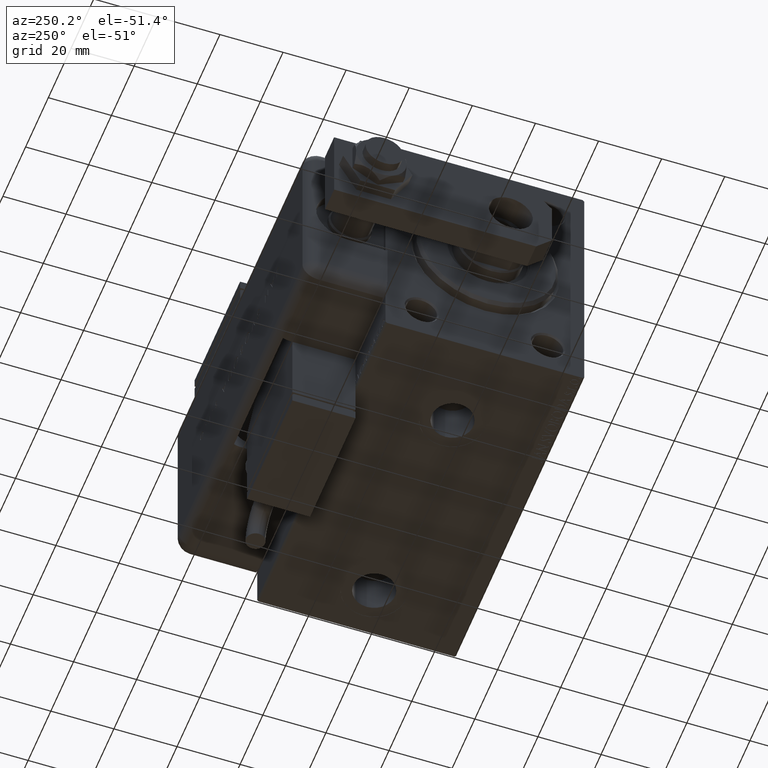
[diagram: clean part render]
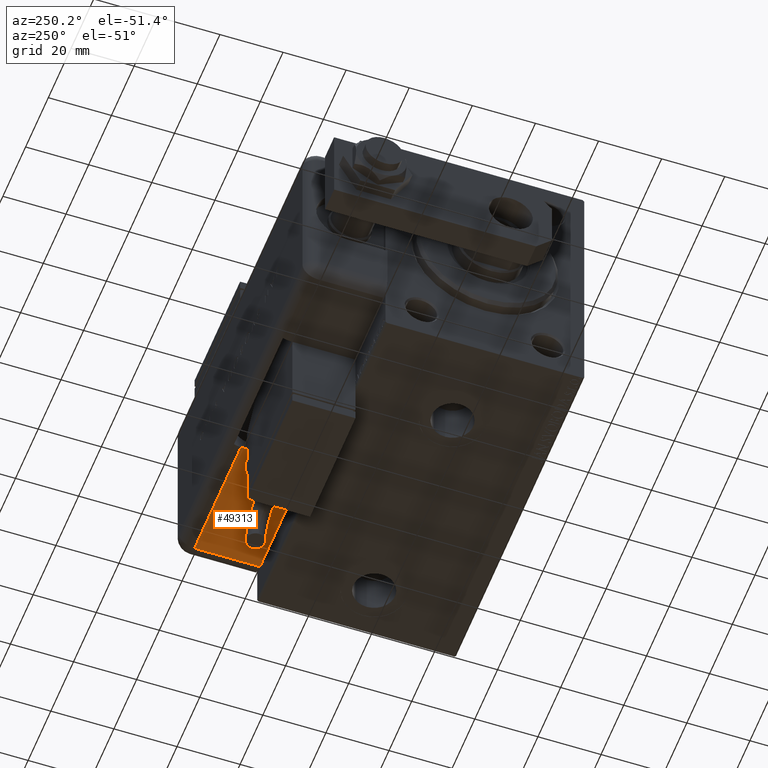
[diagram: same view with one face highlighted and labeled with its STEP entity id]
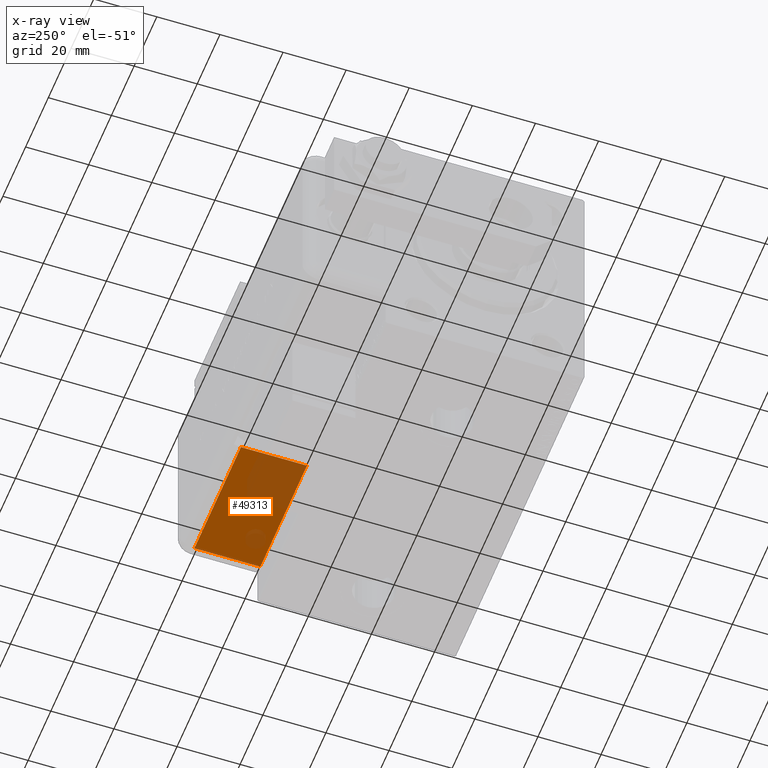
[diagram: x-ray of the same camera — body ghosted, the highlighted face saturated]
A machine part, auxiliary view. The second image highlights one B-rep face of the part: STEP entity #49313.
The next image is the same camera in x-ray: the body ghosted, the highlighted face saturated — about 35% of this face is hidden behind the body in this view.
In plain terms, the highlighted planar face has unit normal (0, 0, 1).
Its self-contained STEP definition (entity closure, byte-faithful):
#2651 = VERTEX_POINT ( 'NONE', #49692 ) ;
#2769 = PLANE ( 'NONE',  #43204 ) ;
#4973 = CARTESIAN_POINT ( 'NONE',  ( -28.99999999999999645, -9.421223957302265857E-15, 46.00000000000001421 ) ) ;
#6066 = CARTESIAN_POINT ( 'NONE',  ( -28.99999999999999645, -1.040834085586084257E-14, 5.000000000000004441 ) ) ;
#6827 = VERTEX_POINT ( 'NONE', #26834 ) ;
#8834 = DIRECTION ( 'NONE',  ( 0.000000000000000000, 0.000000000000000000, -1.000000000000000000 ) ) ;
#11015 = VECTOR ( 'NONE', #15821, 1000.000000000000000 ) ;
#11775 = DIRECTION ( 'NONE',  ( 1.000000000000000000, 0.000000000000000000, -0.000000000000000000 ) ) ;
#12538 = DIRECTION ( 'NONE',  ( -0.000000000000000000, -0.000000000000000000, -1.000000000000000000 ) ) ;
#15821 = DIRECTION ( 'NONE',  ( 0.000000000000000000, -1.000000000000000000, 0.000000000000000000 ) ) ;
#16116 = DIRECTION ( 'NONE',  ( -0.000000000000000000, 0.000000000000000000, -1.000000000000000000 ) ) ;
#17165 = VECTOR ( 'NONE', #39266, 1000.000000000000000 ) ;
#18691 = ORIENTED_EDGE ( 'NONE', *, *, #58314, .F. ) ;
#19269 = EDGE_CURVE ( 'NONE', #6827, #56227, #42025, .T. ) ;
#21014 = ORIENTED_EDGE ( 'NONE', *, *, #19269, .T. ) ;
#22164 = CARTESIAN_POINT ( 'NONE',  ( -28.99999999999999645, -9.421223957302265857E-15, 114.0000000000000000 ) ) ;
#22777 = LINE ( 'NONE', #22164, #40602 ) ;
#23283 = ORIENTED_EDGE ( 'NONE', *, *, #58647, .F. ) ;
#25139 = CARTESIAN_POINT ( 'NONE',  ( -28.99999999999999645, 22.99999999999998934, 46.00000000000001421 ) ) ;
#26518 = VECTOR ( 'NONE', #8834, 1000.000000000000000 ) ;
#26834 = CARTESIAN_POINT ( 'NONE',  ( -28.99999999999999645, 20.79999999999998650, 46.00000000000001421 ) ) ;
#33995 = ORIENTED_EDGE ( 'NONE', *, *, #40310, .T. ) ;
#39266 = DIRECTION ( 'NONE',  ( 0.000000000000000000, -1.000000000000000000, 0.000000000000000000 ) ) ;
#39712 = CARTESIAN_POINT ( 'NONE',  ( -28.99999999999999645, 25.79999999999998295, 114.0000000000000000 ) ) ;
#40310 = EDGE_CURVE ( 'NONE', #56227, #2651, #57559, .T. ) ;
#40602 = VECTOR ( 'NONE', #12538, 1000.000000000000000 ) ;
#42025 = LINE ( 'NONE', #51335, #26518 ) ;
#43204 = AXIS2_PLACEMENT_3D ( 'NONE', #39712, #11775, #16116 ) ;
#45936 = EDGE_LOOP ( 'NONE', ( #18691, #23283, #21014, #33995 ) ) ;
#49060 = VERTEX_POINT ( 'NONE', #4973 ) ;
#49313 = ADVANCED_FACE ( 'NONE', ( #58614 ), #2769, .F. ) ;
#49692 = CARTESIAN_POINT ( 'NONE',  ( -28.99999999999999645, -9.421223957302265857E-15, 5.000000000000031974 ) ) ;
#49900 = CARTESIAN_POINT ( 'NONE',  ( -28.99999999999999645, 20.79999999999998650, 5.000000000000004441 ) ) ;
#51335 = CARTESIAN_POINT ( 'NONE',  ( -28.99999999999999645, 20.79999999999998650, 114.0000000000000000 ) ) ;
#56227 = VERTEX_POINT ( 'NONE', #49900 ) ;
#57559 = LINE ( 'NONE', #6066, #17165 ) ;
#58314 = EDGE_CURVE ( 'NONE', #49060, #2651, #22777, .T. ) ;
#58614 = FACE_OUTER_BOUND ( 'NONE', #45936, .T. ) ;
#58647 = EDGE_CURVE ( 'NONE', #6827, #49060, #58927, .T. ) ;
#58927 = LINE ( 'NONE', #25139, #11015 ) ;